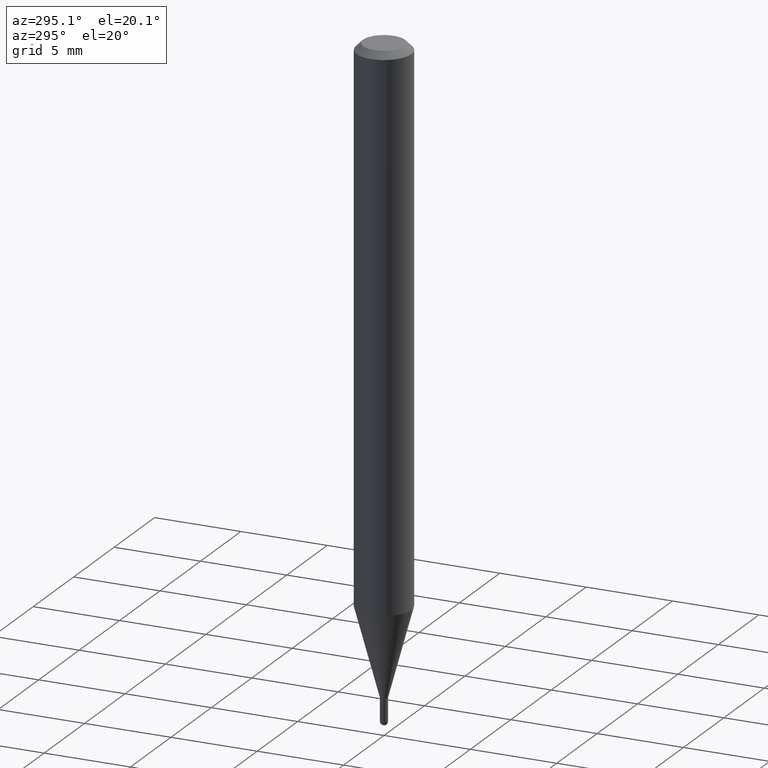
[diagram: clean part render]
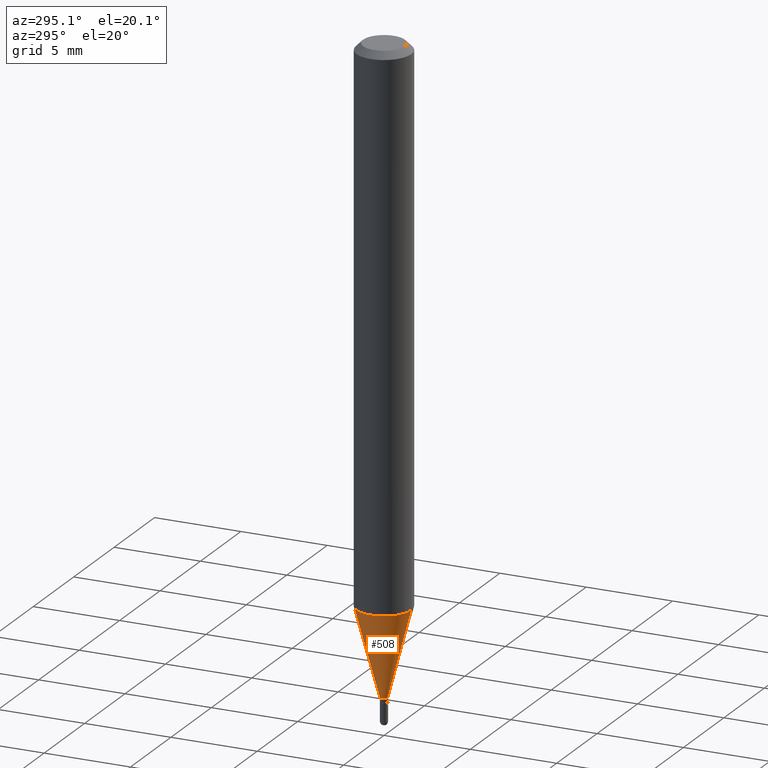
[diagram: same view with one face highlighted and labeled with its STEP entity id]
A machine part, auxiliary view. The second image highlights one B-rep face of the part: STEP entity #508.
In plain terms, the highlighted conical surface has half-angle 15 deg.
Its self-contained STEP definition (entity closure, byte-faithful):
#17 = LINE ( 'NONE', #493, #503 ) ;
#32 = VERTEX_POINT ( 'NONE', #444 ) ;
#34 = CARTESIAN_POINT ( 'NONE',  ( 4.440892098500927901E-16, 0.06249999999999569095, -1.237469256391281691 ) ) ;
#63 = VECTOR ( 'NONE', #195, 39.37007874015748854 ) ;
#66 = FACE_OUTER_BOUND ( 'NONE', #199, .T. ) ;
#77 = DIRECTION ( 'NONE',  ( -6.982962677686265922E-15, -1.000000000000000000, 4.370956789862821150E-15 ) ) ;
#85 = ORIENTED_EDGE ( 'NONE', *, *, #476, .T. ) ;
#98 = DIRECTION ( 'NONE',  ( 1.839019923739601893E-15, 0.2588190451025252359, 0.9659258262890670910 ) ) ;
#105 = CARTESIAN_POINT ( 'NONE',  ( 3.519007785246017748E-29, -5.024272903893087103E-15, -1.439000000000000057 ) ) ;
#121 = VERTEX_POINT ( 'NONE', #286 ) ;
#142 = ORIENTED_EDGE ( 'NONE', *, *, #316, .F. ) ;
#145 = CONICAL_SURFACE ( 'NONE', #479, 0.008499999999999924283, 0.2617993877991505181 ) ;
#151 = CARTESIAN_POINT ( 'NONE',  ( -4.364351673553615448E-16, -0.06250000000000432987, -1.237469256391281025 ) ) ;
#153 = CARTESIAN_POINT ( 'NONE',  ( 3.519007785246017748E-29, -5.024272903893087103E-15, -1.439000000000000057 ) ) ;
#179 = VERTEX_POINT ( 'NONE', #151 ) ;
#185 = CIRCLE ( 'NONE', #245, 0.008499999999999924283 ) ;
#195 = DIRECTION ( 'NONE',  ( -1.807323732225331717E-15, -0.2588190451025184080, 0.9659258262890689783 ) ) ;
#199 = EDGE_LOOP ( 'NONE', ( #439, #85, #416, #142 ) ) ;
#224 = DIRECTION ( 'NONE',  ( -6.982962677686266711E-15, -1.000000000000000000, 0.000000000000000000 ) ) ;
#242 = EDGE_CURVE ( 'NONE', #32, #297, #17, .T. ) ;
#245 = AXIS2_PLACEMENT_3D ( 'NONE', #105, #509, #224 ) ;
#286 = CARTESIAN_POINT ( 'NONE',  ( -5.935518276029754545E-17, -0.008500000000004949777, -1.439000000000000057 ) ) ;
#297 = VERTEX_POINT ( 'NONE', #34 ) ;
#304 = EDGE_CURVE ( 'NONE', #121, #179, #453, .T. ) ;
#316 = EDGE_CURVE ( 'NONE', #297, #179, #447, .T. ) ;
#347 = AXIS2_PLACEMENT_3D ( 'NONE', #434, #381, #77 ) ;
#381 = DIRECTION ( 'NONE',  ( -2.445453638113980177E-29, 3.491503060384354605E-15, 1.000000000000000000 ) ) ;
#416 = ORIENTED_EDGE ( 'NONE', *, *, #304, .T. ) ;
#434 = CARTESIAN_POINT ( 'NONE',  ( 3.026173695096260823E-29, -4.320627695821710436E-15, -1.237469256391281247 ) ) ;
#439 = ORIENTED_EDGE ( 'NONE', *, *, #242, .F. ) ;
#444 = CARTESIAN_POINT ( 'NONE',  ( 2.522426711948681826E-16, 0.008499999999994900524, -1.439000000000000057 ) ) ;
#447 = CIRCLE ( 'NONE', #347, 0.06250000000000000000 ) ;
#453 = LINE ( 'NONE', #510, #63 ) ;
#465 = DIRECTION ( 'NONE',  ( -2.445453638113980177E-29, 3.491503060384354605E-15, 1.000000000000000000 ) ) ;
#476 = EDGE_CURVE ( 'NONE', #32, #121, #185, .T. ) ;
#479 = AXIS2_PLACEMENT_3D ( 'NONE', #153, #465, #504 ) ;
#493 = CARTESIAN_POINT ( 'NONE',  ( 6.039613253964316839E-17, 0.008499999999994900524, -1.439000000000000057 ) ) ;
#503 = VECTOR ( 'NONE', #98, 39.37007874015748854 ) ;
#504 = DIRECTION ( 'NONE',  ( -6.982962677686266711E-15, -1.000000000000000000, 0.000000000000000000 ) ) ;
#508 = ADVANCED_FACE ( 'NONE', ( #66 ), #145, .T. ) ;
#509 = DIRECTION ( 'NONE',  ( -2.445453638113980177E-29, 3.491503060384354605E-15, 1.000000000000000000 ) ) ;
#510 = CARTESIAN_POINT ( 'NONE',  ( -5.935518276029754545E-17, -0.008500000000004949777, -1.439000000000000057 ) ) ;